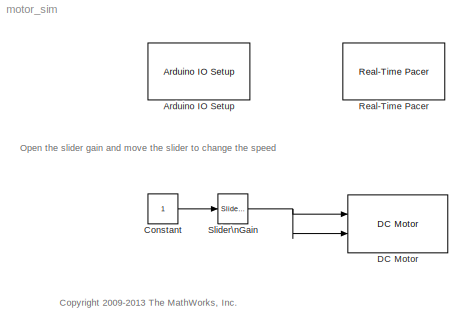
MODEL motor_sim
KIND model
BLOCK [Reference] Arduino IO Setup  REF=arduino_io_lib/Arduino IO Setup
  Ports = []
  Priority = 3
  SourceBlock = arduino_io_lib/Arduino IO Setup
  SourceType = Arduino IO Setup
  arduinoVar = Temporary arduino variable: Arduino1
  comPort = COM9
BLOCK [Constant] Constant
BLOCK [Reference] DC Motor  REF=arduino_io_lib/DC Motor
  Ports = [2]
  SourceBlock = arduino_io_lib/DC Motor
  SourceType = Arduino IO DC Motor
  T = 0.2
  arduinoVar = Temporary arduino variable: Arduino1
  motorNum = 4
  sendOnChange = on
BLOCK [Reference] Real-Time Pacer  REF=arduino_io_lib/Real-Time Pacer
  Ports = []
  SourceBlock = arduino_io_lib/Real-Time Pacer
  SourceType = RealTime_Pacer
  simTimePerRealTime = 1
BLOCK [Reference] Slider\nGain  REF=simulink/Math\nOperations/Slider\nGain
  FunctionWithSeparateData = off
  Ports = [1, 1]
  RTWMemSecDataConstants = Inherit from model
  RTWMemSecDataInternal = Inherit from model
  RTWMemSecDataParameters = Inherit from model
  RTWMemSecFuncExecute = Inherit from model
  RTWMemSecFuncInitTerm = Inherit from model
  ShowPortLabels = FromPortIcon
  SourceBlock = simulink/Math\nOperations/Slider\nGain
  SourceType = Slider Gain
  SystemSampleTime = -1
  gain = 0
  high = 255
  low = -255
ANNOTATION (root): <copyright redacted>
ANNOTATION (root): Open the slider gain and move the slider to change the speed
LINE Constant:1 -> Slider\nGain:1
NET Slider\nGain:1 -> DC Motor:1, DC Motor:2
note: NET lines group one-source signal fan-out (src -> all destinations, sorted); 1:1 wires keep LINE
